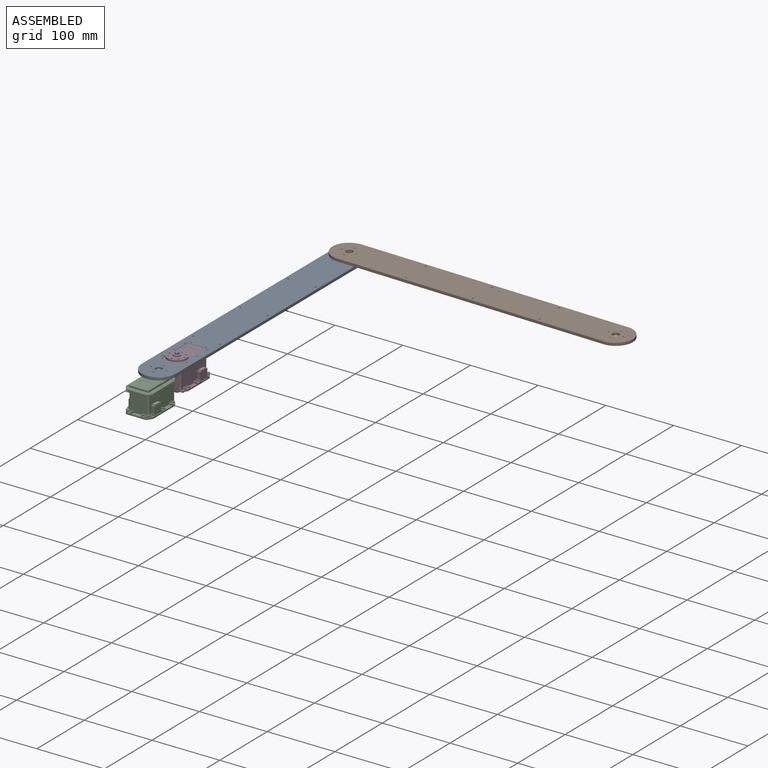
[diagram: assembled view]
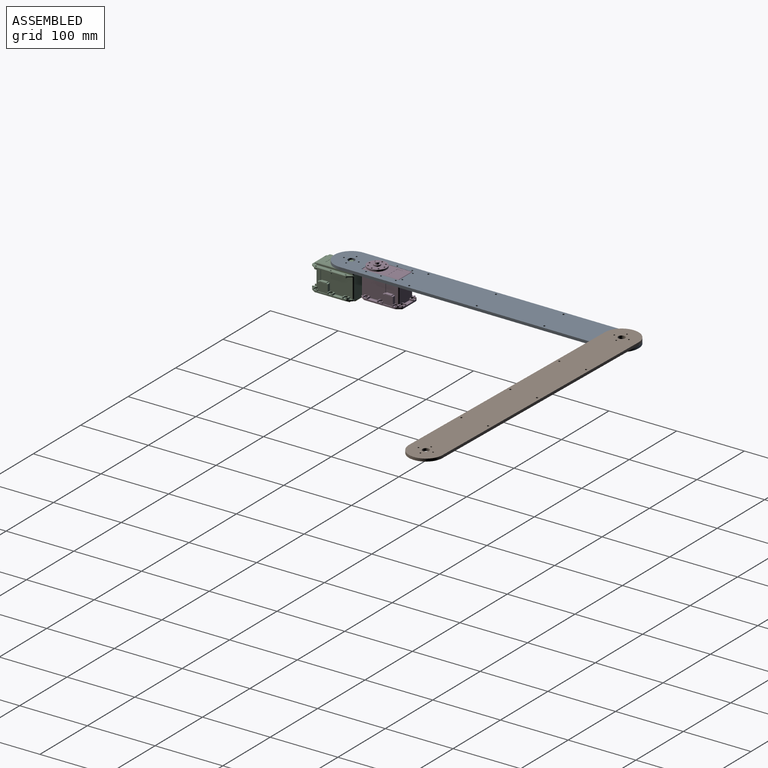
[diagram: assembled view, second angle]
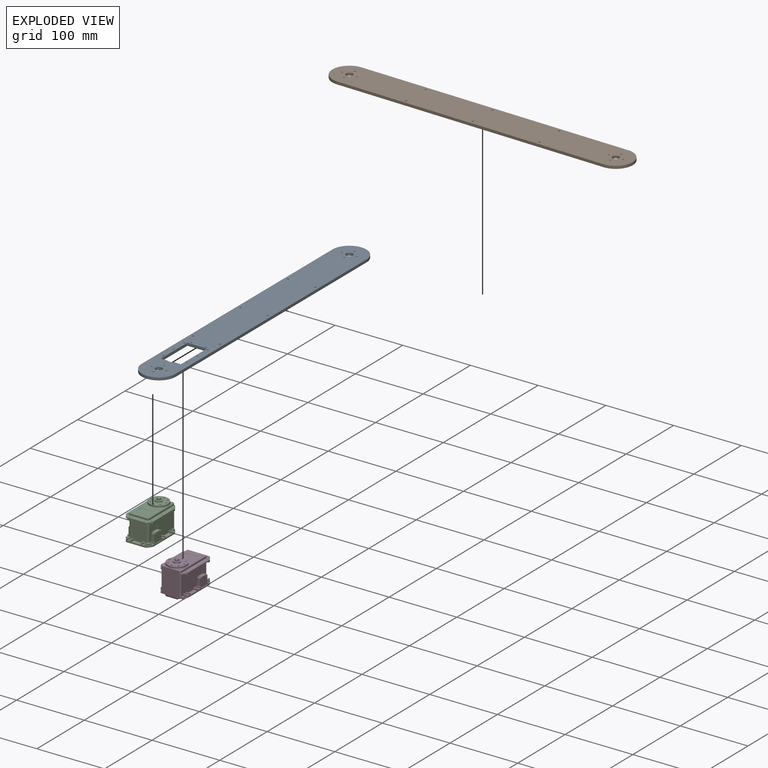
[diagram: exploded view]
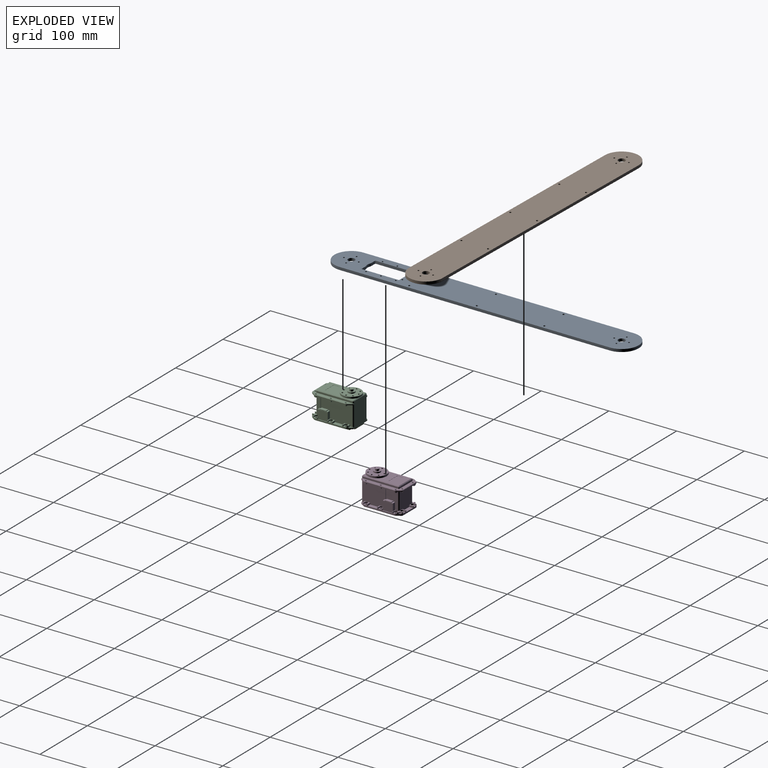
[diagram: exploded view, second angle]
FCSTD DOCUMENT  (FreeCAD 1.0R39109 (Git))
Label: arm_assembly
License: All rights reserved
LicenseURL: https://en.wikipedia.org/wiki/All_rights_reserved
objects: App::FeaturePython×6, Sketcher::SketchObject×2, PartDesign::Pad×2, PartDesign::Body×2, App::Link×2, Assembly::JointGroup×1, Assembly::AssemblyObject×1
note: 12 computed .brp shape members not serialized (recipe doc carries the construction recipe); baked Part::Feature solids carry a one-line shape summary decoded from their .brp
EXTERNAL_REF file=srv.FCStd obj=Part__Feature

FEATURE [Sketcher::SketchObject] Sketch
  ArcFitTolerance = 1e-06
  AttachmentSupport = -> [XY_Plane]
  FullyConstrained = false
  MakeInternals = false
  MapMode = 5
  sketch-geometry (67):
    g0: LineSegment [constr] StartX=1.5008e-12 StartY=20 StartZ=0 EndX=1.5008e-12 EndY=-20 EndZ=0
    g1: LineSegment [constr] StartX=-2.359e-12 StartY=0 StartZ=0 EndX=-2.359e-12 EndY=400 EndZ=0
    g2: LineSegment [constr] StartX=1.5008e-12 StartY=20 StartZ=0 EndX=1.5008e-12 EndY=25 EndZ=0
    g3: Circle CenterX=-2.359e-12 CenterY=400 CenterZ=0 NormalX=0 NormalY=0 NormalZ=1 AngleXU=0 Radius=5
    g4: Circle CenterX=-2.359e-12 CenterY=400 CenterZ=0 NormalX=0 NormalY=0 NormalZ=1 AngleXU=0 Radius=2
    g5: Circle CenterX=-10.9997 CenterY=400 CenterZ=0 NormalX=0 NormalY=0 NormalZ=1 AngleXU=0 Radius=1.25
    g6: Circle CenterX=0 CenterY=389 CenterZ=0 NormalX=0 NormalY=0 NormalZ=1 AngleXU=0 Radius=1.25
    g7: Circle CenterX=10.9997 CenterY=400 CenterZ=0 NormalX=0 NormalY=0 NormalZ=1 AngleXU=0 Radius=1.25
    g8: Circle CenterX=0 CenterY=411 CenterZ=0 NormalX=0 NormalY=0 NormalZ=1 AngleXU=0 Radius=1.25
    g9: LineSegment [constr] StartX=0 StartY=-5 StartZ=0 EndX=0 EndY=5.99996 EndZ=0
    g10: Circle [constr] CenterX=0 CenterY=0 CenterZ=0 NormalX=0 NormalY=0 NormalZ=1 AngleXU=0 Radius=14
    g11: LineSegment [constr] StartX=0 StartY=0 StartZ=0 EndX=25.23 EndY=0 EndZ=0
    g12: Circle [constr] CenterX=0 CenterY=-3.8e-05 CenterZ=0 NormalX=0 NormalY=0 NormalZ=1 AngleXU=0 Radius=11
    g13: Circle CenterX=0 CenterY=0 CenterZ=0 NormalX=0 NormalY=0 NormalZ=1 AngleXU=0 Radius=5
    g14: Circle CenterX=10.9997 CenterY=0 CenterZ=0 NormalX=0 NormalY=0 NormalZ=1 AngleXU=0 Radius=1.25
    g15: Circle CenterX=-10.9997 CenterY=0 CenterZ=0 NormalX=0 NormalY=0 NormalZ=1 AngleXU=0 Radius=1.25
    g16: Circle CenterX=0 CenterY=-10.9997 CenterZ=0 NormalX=0 NormalY=0 NormalZ=1 AngleXU=0 Radius=1.25
    g17: Circle CenterX=0 CenterY=11 CenterZ=0 NormalX=0 NormalY=0 NormalZ=1 AngleXU=0 Radius=1.25
    g18: LineSegment [constr] StartX=0 StartY=0 StartZ=0 EndX=-25 EndY=0 EndZ=0
    g19: LineSegment [constr] StartX=20.1368 StartY=86.0999 StartZ=0 EndX=20.1368 EndY=24.9999 EndZ=0
    g20: LineSegment [constr] StartX=0.036848 StartY=80.5 StartZ=0 EndX=14.5368 EndY=80.5 EndZ=0
    g21: LineSegment StartX=14.5368 StartY=80.5 StartZ=0 EndX=-14.4632 EndY=80.5 EndZ=0
    g22: LineSegment StartX=14.5368 StartY=80.5 StartZ=0 EndX=14.5368 EndY=24.9999 EndZ=0
    g23: Circle CenterX=11.0368 CenterY=83.3 CenterZ=0 NormalX=0 NormalY=0 NormalZ=1 AngleXU=0 Radius=1.25
    g24: Circle CenterX=17.3368 CenterY=78 CenterZ=0 NormalX=0 NormalY=0 NormalZ=1 AngleXU=0 Radius=1.25
    g25: LineSegment [constr] StartX=-20.0632 StartY=86.0999 StartZ=0 EndX=20.1368 EndY=86.0999 EndZ=0
    g26: Circle CenterX=17.3368 CenterY=56 CenterZ=0 NormalX=0 NormalY=0 NormalZ=1 AngleXU=0 Radius=1.25
    g27: Circle CenterX=17.3368 CenterY=34 CenterZ=0 NormalX=0 NormalY=0 NormalZ=1 AngleXU=0 Radius=1.25
    g28: Circle [constr] CenterX=0.036848 CenterY=37.9999 CenterZ=0 NormalX=0 NormalY=0 NormalZ=1 AngleXU=0 Radius=14
    g29: ArcOfCircle CenterX=0.036848 CenterY=37.9999 CenterZ=0 NormalX=0 NormalY=0 NormalZ=1 AngleXU=0 Radius=14 StartAngle=4.33214 EndAngle=5.09264
    g30: LineSegment StartX=5.233 StartY=24.9999 StartZ=0 EndX=14.5368 EndY=24.9999 EndZ=0
    g31: LineSegment [constr] StartX=14.5368 StartY=24.9999 StartZ=0 EndX=20.1368 EndY=24.9999 EndZ=0
    g32: LineSegment [constr] StartX=17.3368 StartY=56 StartZ=0 EndX=-17.2632 EndY=56 EndZ=0
    g33: LineSegment [constr] StartX=-20.0632 StartY=24.9999 StartZ=0 EndX=-20.0632 EndY=86.0999 EndZ=0
    g34: LineSegment StartX=-14.4632 StartY=80.5 StartZ=0 EndX=-14.4632 EndY=24.9999 EndZ=0
    g35: Circle CenterX=-17.2632 CenterY=78 CenterZ=0 NormalX=0 NormalY=0 NormalZ=1 AngleXU=0 Radius=1.25
    g36: Circle CenterX=-10.9632 CenterY=83.3 CenterZ=0 NormalX=0 NormalY=0 NormalZ=1 AngleXU=0 Radius=1.25
    g37: Circle CenterX=-17.2632 CenterY=56 CenterZ=0 NormalX=0 NormalY=0 NormalZ=1 AngleXU=0 Radius=1.25
    g38: Circle CenterX=-17.2632 CenterY=34 CenterZ=0 NormalX=0 NormalY=0 NormalZ=1 AngleXU=0 Radius=1.25
    g39: LineSegment StartX=-14.4632 StartY=24.9999 StartZ=0 EndX=-5.15931 EndY=24.9999 EndZ=0
    g40: LineSegment [constr] StartX=-20.0632 StartY=24.9999 StartZ=0 EndX=-14.4632 EndY=24.9999 EndZ=0
    g41: ArcOfCircle CenterX=0.115002 CenterY=3.75548e-06 CenterZ=0 NormalX=0 NormalY=0 NormalZ=1 AngleXU=0 Radius=25.115 StartAngle=3.14159 EndAngle=6.28319
    g42: ArcOfCircle CenterX=0.115002 CenterY=399.959 CenterZ=0 NormalX=0 NormalY=0 NormalZ=1 AngleXU=0 Radius=25.115 StartAngle=0 EndAngle=3.14159
    g43: LineSegment StartX=-25 StartY=3.75548e-06 StartZ=0 EndX=-25 EndY=399.959 EndZ=0
    g44: LineSegment StartX=25.23 StartY=3.75548e-06 StartZ=0 EndX=25.23 EndY=399.959 EndZ=0
    g45: LineSegment [constr] StartX=25.23 StartY=199.98 StartZ=0 EndX=-25 EndY=199.98 EndZ=0
    g46: LineSegment [constr] StartX=25.23 StartY=199.98 StartZ=0 EndX=55.23 EndY=199.98 EndZ=0
    g47: LineSegment [constr] StartX=25.23 StartY=0 StartZ=0 EndX=55.23 EndY=0 EndZ=0
    g48: LineSegment [constr] StartX=55.23 StartY=0 StartZ=0 EndX=55.23 EndY=199.98 EndZ=0
    g49: LineSegment [constr] StartX=55.23 StartY=99.9898 StartZ=0 EndX=25.23 EndY=99.9898 EndZ=0
    g50: LineSegment [constr] StartX=25.23 StartY=99.9898 StartZ=0 EndX=-25 EndY=99.9898 EndZ=0
    g51: LineSegment [constr] StartX=25.23 StartY=399.959 StartZ=0 EndX=55.23 EndY=399.959 EndZ=0
    g52: LineSegment [constr] StartX=55.23 StartY=399.959 StartZ=0 EndX=55.23 EndY=199.98 EndZ=0
    g53: LineSegment [constr] StartX=55.23 StartY=299.969 StartZ=0 EndX=25.23 EndY=299.969 EndZ=0
    g54: LineSegment [constr] StartX=25.23 StartY=299.969 StartZ=0 EndX=-25 EndY=299.969 EndZ=0
    g55: LineSegment [constr] StartX=-25 StartY=299.969 StartZ=0 EndX=-20 EndY=299.969 EndZ=0
    g56: LineSegment [constr] StartX=-20 StartY=299.969 StartZ=0 EndX=-20 EndY=199.98 EndZ=0
    g57: LineSegment [constr] StartX=-20 StartY=199.98 StartZ=0 EndX=-20 EndY=99.9898 EndZ=0
    g58: LineSegment [constr] StartX=25.23 StartY=299.969 StartZ=0 EndX=20.23 EndY=299.969 EndZ=0
    g59: LineSegment [constr] StartX=20.23 StartY=299.969 StartZ=0 EndX=20.23 EndY=199.98 EndZ=0
    g60: LineSegment [constr] StartX=20.23 StartY=199.98 StartZ=0 EndX=20.23 EndY=99.9898 EndZ=0
    g61: Circle CenterX=-20 CenterY=299.969 CenterZ=0 NormalX=0 NormalY=0 NormalZ=1 AngleXU=0 Radius=1.5
    g62: Circle CenterX=20.23 CenterY=299.969 CenterZ=0 NormalX=0 NormalY=0 NormalZ=1 AngleXU=0 Radius=1.5
    g63: Circle CenterX=-20 CenterY=199.98 CenterZ=0 NormalX=0 NormalY=0 NormalZ=1 AngleXU=0 Radius=1.5
    g64: Circle CenterX=20.23 CenterY=199.98 CenterZ=0 NormalX=0 NormalY=0 NormalZ=1 AngleXU=0 Radius=1.5
    g65: Circle CenterX=-20 CenterY=99.9898 CenterZ=0 NormalX=0 NormalY=0 NormalZ=1 AngleXU=0 Radius=1.5
    g66: Circle CenterX=20.23 CenterY=99.9898 CenterZ=0 NormalX=0 NormalY=0 NormalZ=1 AngleXU=0 Radius=1.5
  constraints (132):
    c: Vertical(g0)
    c: Vertical(g1)
    c: Coincident(g2,g0)
    c: Vertical(g2)
    c: Diameter(g3) = 10
    c: Coincident(g3,g1)
    c: Diameter(g4) = 4
    c: Coincident(g4,g1)
    c: Diameter(g8) = 2.5
    c: Diameter(g5) = 2.5
    c: Diameter(g6) = 2.5
    c: Diameter(g7) = 2.5
    c: Vertical(g9)
    c: Diameter(g10) = 28
    c: Coincident(g18,g10)
    c: Horizontal(g18)
    c: Coincident(g11,g10)
    c: Horizontal(g11)
    c: Diameter(g12) = 22
    c: Diameter(g13) = 10
    c: Coincident(g13,g10)
    c: Diameter(g17) = 2.5
    c: Diameter(g15) = 2.5
    c: Diameter(g16) = 2.5
    c: Diameter(g14) = 2.5
    c: Coincident(g25,g19)
    c: Coincident(g33,g25)
    c: Horizontal(g25)
    c: Vertical(g19)
    c: Vertical(g33)
    c: Distance(g19,g33) = 40.2
    c: Distance(g25,g33) = 61.1
    c: Diameter(g29) = 28
    c: Horizontal(g20)
    c: Coincident(g21,g20)
    c: Horizontal(g21)
    c: Coincident(g34,g21)
    c: Vertical(g34)
    c: Coincident(g22,g20)
    c: Vertical(g22)
    c: Diameter(g23) = 2.5
    c: Equal(g23,g36)
    c: Equal(g23,g27)
    c: Equal(g23,g38)
    c: Equal(g23,g37)
    c: Equal(g23,g35)
    c: Equal(g23,g24)
    c: Equal(g23,g26)
    c: Coincident(g28,g29)
    c: PointOnObject(g29,g28)
    c: Coincident(g30,g29)
    c: Coincident(g30,g22)
    c: Horizontal(g30)
    c: Coincident(g31,g22)
    c: Coincident(g31,g19)
    c: Horizontal(g31)
    c: Coincident(g39,g34)
    c: Coincident(g39,g29)
    c: Horizontal(g39)
    c: Coincident(g40,g33)
    c: Coincident(g40,g34)
    c: Horizontal(g40)
    c: Coincident(g32,g26)
    c: Coincident(g32,g37)
    c: Horizontal(g32)
    c: DistanceY(g28,g1) = 362
    c: Tangent(g41,g43) = 1.5708
    c: Tangent(g41,g44) = -1.5708
    c: Tangent(g42,g43) = 1.5708
    c: Tangent(g42,g44) = -1.5708
    c: Equal(g41,g42)
    c: Symmetric(g44,g44,g45)
    c: Symmetric(g43,g43,g45)
    c: Horizontal(g45)
    c: Distance(g46) = 30
    c: Horizontal(g46)
    c: Coincident(g46,g45)
    c: Distance(g47) = 30
    c: Horizontal(g47)
    c: Coincident(g47,g11)
    c: PointOnObject(g47,g-1)
    c: Coincident(g48,g47)
    c: Coincident(g48,g46)
    c: Vertical(g48)
    c: Symmetric(g48,g48,g49)
    c: PointOnObject(g49,g44)
    c: Horizontal(g49)
    c: Coincident(g50,g49)
    c: PointOnObject(g50,g43)
    c: Horizontal(g50)
    c: Distance(g51) = 30
    c: Horizontal(g51)
    c: Coincident(g51,g42)
    c: Coincident(g52,g51)
    c: Coincident(g52,g46)
    c: Symmetric(g52,g52,g53)
    c: PointOnObject(g53,g44)
    c: Horizontal(g53)
    c: Coincident(g54,g53)
    c: PointOnObject(g54,g43)
    c: Horizontal(g54)
    c: Distance(g55) = 5
    c: Coincident(g55,g54)
    c: PointOnObject(g55,g54)
    c: Coincident(g56,g55)
    c: PointOnObject(g56,g45)
    c: Vertical(g56)
    c: Coincident(g57,g56)
    c: PointOnObject(g57,g50)
    c: Vertical(g57)
    c: Distance(g58) = 5
    c: Coincident(g58,g53)
    c: PointOnObject(g58,g54)
    c: Coincident(g59,g58)
    c: PointOnObject(g59,g45)
    c: Vertical(g59)
    c: Coincident(g60,g59)
    c: PointOnObject(g60,g50)
    c: Vertical(g60)
    c: Coincident(g61,g55)
    c: Diameter(g61) = 3
    c: Coincident(g62,g58)
    c: Equal(g61,g62)
    c: Coincident(g63,g56)
    c: Equal(g61,g63)
    c: Coincident(g64,g59)
    c: Equal(g63,g64)
    c: Coincident(g65,g57)
    c: Equal(g63,g65)
    c: Coincident(g66,g60)
    c: Equal(g65,g66)
    c: DistanceY(g41,g28) = 37.9999
FEATURE [Sketcher::SketchObject] Sketch001
  ArcFitTolerance = 1e-06
  FullyConstrained = false
  MakeInternals = false
  MapMode = 5
  sketch-geometry (41):
    g0: Circle [constr] CenterX=7e-16 CenterY=0.000303 CenterZ=0 NormalX=0 NormalY=0 NormalZ=1 AngleXU=0 Radius=14
    g1: LineSegment [constr] StartX=7e-16 StartY=0.000303 StartZ=0 EndX=7e-16 EndY=400.001 EndZ=0
    g2: Circle CenterX=7e-16 CenterY=400.001 CenterZ=0 NormalX=0 NormalY=0 NormalZ=1 AngleXU=0 Radius=5
    g3: Circle CenterX=7e-16 CenterY=0 CenterZ=0 NormalX=0 NormalY=0 NormalZ=1 AngleXU=0 Radius=5
    g4: Circle CenterX=7e-16 CenterY=400.001 CenterZ=0 NormalX=0 NormalY=0 NormalZ=1 AngleXU=0 Radius=2
    g5: Circle CenterX=7e-16 CenterY=0.000303 CenterZ=0 NormalX=0 NormalY=0 NormalZ=1 AngleXU=0 Radius=2
    g6: Circle [constr] CenterX=0 CenterY=0 CenterZ=0 NormalX=0 NormalY=0 NormalZ=1 AngleXU=0 Radius=11
    g7: ArcOfCircle CenterX=7e-16 CenterY=0 CenterZ=0 NormalX=0 NormalY=0 NormalZ=1 AngleXU=0 Radius=25 StartAngle=3.14159 EndAngle=6.28319
    g8: ArcOfCircle CenterX=7e-16 CenterY=400.001 CenterZ=0 NormalX=0 NormalY=0 NormalZ=1 AngleXU=0 Radius=25 StartAngle=6e-16 EndAngle=3.14159
    g9: LineSegment StartX=-25 StartY=-8e-15 StartZ=0 EndX=-25 EndY=400.001 EndZ=0
    g10: LineSegment StartX=25 StartY=0 StartZ=0 EndX=25 EndY=400.001 EndZ=0
    g11: Circle CenterX=10.9997 CenterY=400.001 CenterZ=0 NormalX=0 NormalY=0 NormalZ=1 AngleXU=0 Radius=1.25
    g12: Circle CenterX=0 CenterY=411.001 CenterZ=0 NormalX=0 NormalY=0 NormalZ=1 AngleXU=0 Radius=1.25
    g13: Circle CenterX=-10.9997 CenterY=400.001 CenterZ=0 NormalX=0 NormalY=0 NormalZ=1 AngleXU=0 Radius=1.25
    g14: Circle CenterX=0 CenterY=389.001 CenterZ=0 NormalX=0 NormalY=0 NormalZ=1 AngleXU=0 Radius=1.25
    g15: Circle CenterX=10.9997 CenterY=0.000303 CenterZ=0 NormalX=0 NormalY=0 NormalZ=1 AngleXU=0 Radius=1.25
    g16: Circle CenterX=0 CenterY=11 CenterZ=0 NormalX=0 NormalY=0 NormalZ=1 AngleXU=0 Radius=1.25
    g17: Circle CenterX=-10.9997 CenterY=0.000303 CenterZ=0 NormalX=0 NormalY=0 NormalZ=1 AngleXU=0 Radius=1.25
    g18: Circle CenterX=0 CenterY=-10.9994 CenterZ=0 NormalX=0 NormalY=0 NormalZ=1 AngleXU=0 Radius=1.25
    g19: LineSegment [constr] StartX=25 StartY=200 StartZ=0 EndX=-25 EndY=200 EndZ=0
    g20: LineSegment [constr] StartX=25 StartY=200 StartZ=0 EndX=55 EndY=200 EndZ=0
    g21: LineSegment [constr] StartX=25 StartY=0 StartZ=0 EndX=55 EndY=0 EndZ=0
    g22: LineSegment [constr] StartX=25 StartY=400.001 StartZ=0 EndX=55 EndY=400.001 EndZ=0
    g23: LineSegment [constr] StartX=55 StartY=200 StartZ=0 EndX=55 EndY=400.001 EndZ=0
    g24: LineSegment [constr] StartX=55 StartY=200 StartZ=0 EndX=55 EndY=0 EndZ=0
    g25: LineSegment [constr] StartX=55 StartY=100 StartZ=0 EndX=25 EndY=100 EndZ=0
    g26: LineSegment [constr] StartX=25 StartY=100 StartZ=0 EndX=-25 EndY=100 EndZ=0
    g27: LineSegment [constr] StartX=55 StartY=300 StartZ=0 EndX=25 EndY=300 EndZ=0
    g28: LineSegment [constr] StartX=25 StartY=300 StartZ=0 EndX=-25 EndY=300 EndZ=0
    g29: LineSegment [constr] StartX=-25 StartY=300 StartZ=0 EndX=-20 EndY=300 EndZ=0
    g30: LineSegment [constr] StartX=-20 StartY=300 StartZ=0 EndX=-20 EndY=200 EndZ=0
    g31: LineSegment [constr] StartX=-20 StartY=200 StartZ=0 EndX=-20 EndY=100 EndZ=0
    g32: LineSegment [constr] StartX=25 StartY=100 StartZ=0 EndX=20 EndY=100 EndZ=0
    g33: LineSegment [constr] StartX=20 StartY=100 StartZ=0 EndX=20 EndY=200 EndZ=0
    g34: LineSegment [constr] StartX=20 StartY=200 StartZ=0 EndX=20 EndY=300 EndZ=0
    g35: Circle CenterX=-20 CenterY=300 CenterZ=0 NormalX=0 NormalY=0 NormalZ=1 AngleXU=0 Radius=1.5
    g36: Circle CenterX=20 CenterY=300 CenterZ=0 NormalX=0 NormalY=0 NormalZ=1 AngleXU=0 Radius=1.5
    g37: Circle CenterX=-20 CenterY=200 CenterZ=0 NormalX=0 NormalY=0 NormalZ=1 AngleXU=0 Radius=1.5
    g38: Circle CenterX=20 CenterY=200 CenterZ=0 NormalX=0 NormalY=0 NormalZ=1 AngleXU=0 Radius=1.5
    g39: Circle CenterX=-20 CenterY=100 CenterZ=0 NormalX=0 NormalY=0 NormalZ=1 AngleXU=0 Radius=1.5
    g40: Circle CenterX=20 CenterY=100 CenterZ=0 NormalX=0 NormalY=0 NormalZ=1 AngleXU=0 Radius=1.5
  constraints (85):
    c: Diameter(g0) = 28
    c: Coincident(g1,g0)
    c: Vertical(g1)
    c: Coincident(g2,g1)
    c: Diameter(g3) = 10
    c: Diameter(g4) = 4
    c: Coincident(g4,g1)
    c: Diameter(g5) = 4
    c: Coincident(g5,g0)
    c: Diameter(g6) = 22
    c: Tangent(g7,g9) = 1.5708
    c: Tangent(g7,g10) = -1.5708
    c: Tangent(g8,g9) = 1.5708
    c: Tangent(g8,g10) = -1.5708
    c: Equal(g7,g8)
    c: Radius(g7) = 25
    c: Coincident(g7,g3)
    c: Coincident(g8,g1)
    c: Vertical(g9)
    c: Diameter(g12) = 2.5
    c: Diameter(g13) = 2.5
    c: Diameter(g14) = 2.5
    c: Diameter(g11) = 2.5
    c: Diameter(g16) = 2.5
    c: Diameter(g17) = 2.5
    c: Diameter(g18) = 2.5
    c: Diameter(g15) = 2.5
    c: Symmetric(g10,g10,g19)
    c: Symmetric(g9,g9,g19)
    c: Distance(g20) = 30
    c: Horizontal(g20)
    c: Coincident(g20,g19)
    c: Distance(g21) = 30
    c: Horizontal(g21)
    c: Coincident(g21,g7)
    c: PointOnObject(g21,g-1)
    c: Distance(g22) = 30
    c: Horizontal(g22)
    c: Coincident(g22,g8)
    c: Coincident(g23,g20)
    c: Coincident(g23,g22)
    c: Coincident(g24,g20)
    c: Coincident(g24,g21)
    c: Symmetric(g24,g24,g25)
    c: PointOnObject(g25,g10)
    c: Horizontal(g25)
    c: Coincident(g26,g25)
    c: PointOnObject(g26,g9)
    c: Horizontal(g26)
    c: Symmetric(g23,g23,g27)
    c: PointOnObject(g27,g10)
    c: Horizontal(g27)
    c: Coincident(g28,g27)
    c: PointOnObject(g28,g9)
    c: Horizontal(g28)
    c: Distance(g29) = 5
    c: Horizontal(g29)
    c: Coincident(g29,g28)
    c: Coincident(g30,g29)
    c: PointOnObject(g30,g19)
    c: Vertical(g30)
    c: Coincident(g31,g30)
    c: PointOnObject(g31,g26)
    c: Vertical(g31)
    c: Distance(g32) = 5
    c: Horizontal(g32)
    c: Coincident(g32,g25)
    c: Coincident(g33,g32)
    c: PointOnObject(g33,g19)
    c: Vertical(g33)
    c: Coincident(g34,g33)
    c: PointOnObject(g34,g28)
    c: Vertical(g34)
    c: Diameter(g35) = 3
    c: Coincident(g35,g29)
    c: Coincident(g36,g34)
    c: Equal(g35,g36)
    c: Coincident(g37,g30)
    c: Equal(g35,g37)
    c: Coincident(g38,g33)
    c: Equal(g37,g38)
    c: Coincident(g39,g31)
    c: Equal(g37,g39)
    c: Coincident(g40,g32)
    c: Equal(g39,g40)
FEATURE [PartDesign::Pad] Pad
  Direction = (0,0,1)
  Length = 4
  Length2 = 10
  Profile = -> Sketch
  ReferenceAxis = -> Sketch [N_Axis]
  Refine = true
  Suppressed = false
  Type = 0
FEATURE [PartDesign::Body] Body  label="arm_low_1"
  AllowCompound = false
  Group = -> [Sketch,Pad]
  Origin = -> Origin
  Placement = pos=(0,0,25.3) rot=(0,0,-1;0.003227rad)
  Tip = -> Pad
FEATURE [PartDesign::Pad] Pad001
  Direction = (0,0,1)
  Length = 4
  Length2 = 10
  Profile = -> Sketch001
  ReferenceAxis = -> Sketch001 [N_Axis]
  Refine = true
  Suppressed = false
  Type = 0
FEATURE [PartDesign::Body] Body001  label="arm_high_1"
  AllowCompound = false
  Group = -> [Sketch001,Pad001]
  Origin = -> Origin001
  Placement = pos=(401.187,390.836,29.3) rot=(0,0,1;1.54789rad)
  Tip = -> Pad001
FEATURE [App::Link] DC05_M01_DUMMY
  LinkedObject = -> <external srv.FCStd>#Part__Feature
FEATURE [App::FeaturePython] GroundedJoint  # Assembly grounded joint (typed FeaturePython)
  ObjectToGround = -> DC05_M01_DUMMY
FEATURE [App::FeaturePython] Joint  label="Revolute"  # Assembly joint (typed FeaturePython)
  Activated = true
  AngleMax = 0
  AngleMin = 0
  Detach1 = false
  Detach2 = false
  Distance = 0
  Distance2 = 0
  EnableAngleMax = false
  EnableAngleMin = false
  EnableLengthMax = false
  EnableLengthMin = false
  JointType = 1 (Revolute)
  LengthMax = 0
  LengthMin = 0
  Placement2 = pos=(0,0,25.3) rot=(-0.707107,0.707107,0;3.14159rad)
  Reference1 = -> Assembly [Body.Face11,Body.Edge2]
  Reference2 = -> Assembly [DC05_M01_DUMMY.Face269,DC05_M01_DUMMY.Edge1]
FEATURE [App::FeaturePython] Joint001  label="Revolute001"  # Assembly joint (typed FeaturePython)
  Activated = true
  AngleMax = 0
  AngleMin = 0
  Detach1 = false
  Detach2 = false
  Distance = 0
  Distance2 = 0
  EnableAngleMax = false
  EnableAngleMin = false
  EnableLengthMax = false
  EnableLengthMin = false
  JointType = 1 (Revolute)
  LengthMax = 0
  LengthMin = 0
  Placement1 = pos=(-5.68e-14,400.001,0) rot=(0,0,1;0rad)
  Placement2 = pos=(-2.3588e-12,400,4) rot=(0,0,1;0rad)
  Reference1 = -> Assembly [Body001.Edge17,Body001.Edge17]
  Reference2 = -> Assembly [Body.Edge36,Body.Edge36]
FEATURE [App::Link] DC05_M01_DUMMY001
  LinkPlacement = pos=(0.159487,37.9996,9.05) rot=(0,0,1;3.13836rad)
  LinkedObject = -> <external srv.FCStd>#Part__Feature
  Placement = pos=(0.159487,37.9996,9.05) rot=(0,0,1;3.13836rad)
FEATURE [App::FeaturePython] Joint002  label="Distance"  # Assembly joint (typed FeaturePython)
  Activated = true
  AngleMax = 0
  AngleMin = 0
  Detach1 = false
  Detach2 = false
  Distance = 0
  Distance2 = 0
  EnableAngleMax = false
  EnableAngleMin = false
  EnableLengthMax = false
  EnableLengthMin = false
  JointType = 5 (Distance)
  LengthMax = 0
  LengthMin = 0
  Placement1 = pos=(0.00149626,-23.2403,17) rot=(0,0,1;0rad)
  Placement2 = pos=(-10.9997,0,2) rot=(0,0,1;0rad)
  Reference1 = -> Assembly [DC05_M01_DUMMY001.Face128,DC05_M01_DUMMY001.Vertex405]
  Reference2 = -> Assembly [Body.Face29,Body.Edge23]
FEATURE [App::FeaturePython] Joint003  label="Distance001"  # Assembly joint (typed FeaturePython)
  Activated = true
  AngleMax = 0
  AngleMin = 0
  Detach1 = false
  Detach2 = false
  Distance = -55.5
  Distance2 = 0
  EnableAngleMax = false
  EnableAngleMin = false
  EnableLengthMax = false
  EnableLengthMin = false
  JointType = 5 (Distance)
  LengthMax = 0
  LengthMin = 0
  Placement1 = pos=(3.76754e-09,-42.5,18.25) rot=(1,0,0;1.5708rad)
  Placement2 = pos=(-9.81123,24.9999,2) rot=(-1,0,0;1.5708rad)
  Reference1 = -> Assembly [DC05_M01_DUMMY001.Face34,DC05_M01_DUMMY001.Face34]
  Reference2 = -> Assembly [Body.Face7,Body.Face7]
FEATURE [App::FeaturePython] Joint004  label="Distance002"  # Assembly joint (typed FeaturePython)
  Activated = true
  AngleMax = 0
  AngleMin = 0
  Detach1 = false
  Detach2 = false
  Distance = -28.5
  Distance2 = 0
  EnableAngleMax = false
  EnableAngleMin = false
  EnableLengthMax = false
  EnableLengthMin = false
  JointType = 5 (Distance)
  LengthMax = 0
  LengthMin = 0
  Placement1 = pos=(-14.5,-15.25,18.25) rot=(0.57735,-0.57735,-0.57735;2.0944rad)
  Placement2 = pos=(0.036848,37.9999,2) rot=(0,0,1;0rad)
  Reference1 = -> Assembly [DC05_M01_DUMMY001.Face46,DC05_M01_DUMMY001.Face46]
  Reference2 = -> Assembly [Body.Face8,Body.Face8]
FEATURE [Assembly::JointGroup] Joints
  Group = -> [GroundedJoint,Joint,Joint001,Joint002,Joint003,Joint004]
FEATURE [Assembly::AssemblyObject] Assembly
  Group = -> [Joints,Body,Body001,DC05_M01_DUMMY,GroundedJoint,Joint,Joint001,DC05_M01_DUMMY001,Joint002,Joint003,Joint004]
  Origin = -> Origin003
  Type = Assembly
